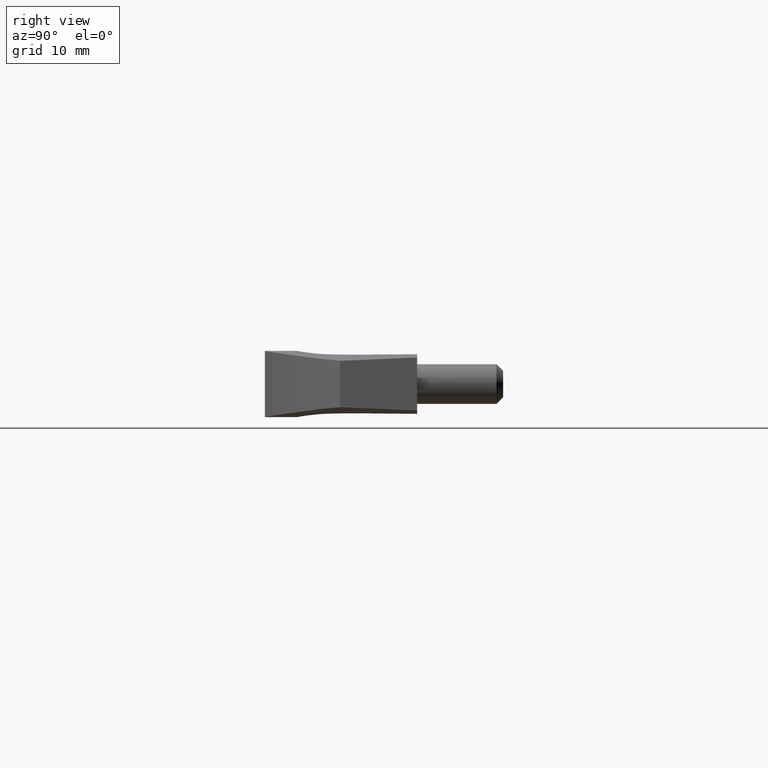
[diagram: clean part render]
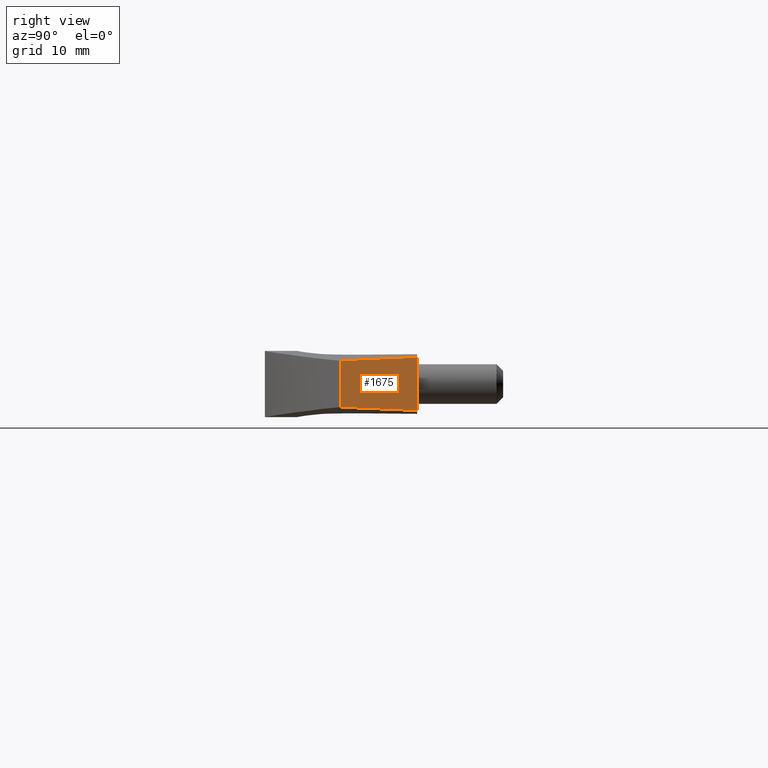
[diagram: same view with one face highlighted and labeled with its STEP entity id]
A machine part, right view. The second image highlights one B-rep face of the part: STEP entity #1675.
In plain terms, the highlighted face is a freeform B-spline surface patch.
Its self-contained STEP definition (entity closure, byte-faithful):
#863=CARTESIAN_POINT('',(51.000556732043997,3.500028366020975,11.623340546744480));
#864=VERTEX_POINT('',#863);
#943=CARTESIAN_POINT('',(51.000556732043698,-3.500028366020840,11.623340546744600));
#944=VERTEX_POINT('',#943);
#1014=CARTESIAN_POINT('',(51.000556732043997,3.500028366020975,11.623340546744480));
#1015=CARTESIAN_POINT('',(51.000556732043698,-3.500028366020840,11.623340546744600));
#1016=QUASI_UNIFORM_CURVE('',1,(#1014,#1015),.UNSPECIFIED.,.F.,.U.);
#1017=EDGE_CURVE('',#864,#944,#1016,.T.);
#1562=CARTESIAN_POINT('',(52.000500000002198,3.999999999999950,-8.881784E-013));
#1563=VERTEX_POINT('',#1562);
#1572=CARTESIAN_POINT('',(52.000500000002198,-4.0,-3.774758E-012));
#1573=VERTEX_POINT('',#1572);
#1574=CARTESIAN_POINT('',(52.000500000002198,-4.0,-3.774758E-012));
#1575=CARTESIAN_POINT('',(52.000500000002198,3.999999999999950,-8.881784E-013));
#1576=QUASI_UNIFORM_CURVE('',1,(#1574,#1575),.UNSPECIFIED.,.F.,.U.);
#1577=EDGE_CURVE('',#1573,#1563,#1576,.T.);
#1656=CARTESIAN_POINT('',(50.950609558360760,-4.399599984494444,12.203926493638020));
#1657=CARTESIAN_POINT('',(52.050447191566001,-4.399599984494444,-0.580586154738676));
#1658=CARTESIAN_POINT('',(50.950609558361037,4.399600199071116,12.203926493638050));
#1659=CARTESIAN_POINT('',(52.050447191566278,4.399600199071116,-0.580586154738652));
#1660=B_SPLINE_SURFACE_WITH_KNOTS('',1,1,((#1656,#1658),(#1657,#1659)),.UNSPECIFIED.,.F.,.F.,.U.,(2,2),(2,2),(0.0,12.831734351829381),(0.0,8.799200183565560),.UNSPECIFIED.);
#1661=CARTESIAN_POINT('',(52.000500000002198,3.999999999999950,-8.881784E-013));
#1662=CARTESIAN_POINT('',(51.000556732043997,3.500028366020975,11.623340546744480));
#1663=QUASI_UNIFORM_CURVE('',1,(#1661,#1662),.UNSPECIFIED.,.F.,.U.);
#1664=EDGE_CURVE('',#1563,#864,#1663,.T.);
#1665=ORIENTED_EDGE('',*,*,#1664,.T.);
#1666=ORIENTED_EDGE('',*,*,#1017,.T.);
#1667=CARTESIAN_POINT('',(51.000556732043698,-3.500028366020840,11.623340546744600));
#1668=CARTESIAN_POINT('',(52.000500000002198,-4.0,-3.774758E-012));
#1669=QUASI_UNIFORM_CURVE('',1,(#1667,#1668),.UNSPECIFIED.,.F.,.U.);
#1670=EDGE_CURVE('',#944,#1573,#1669,.T.);
#1671=ORIENTED_EDGE('',*,*,#1670,.T.);
#1672=ORIENTED_EDGE('',*,*,#1577,.T.);
#1673=EDGE_LOOP('',(#1665,#1666,#1671,#1672));
#1674=FACE_OUTER_BOUND('',#1673,.T.);
#1675=ADVANCED_FACE('',(#1674),#1660,.T.);